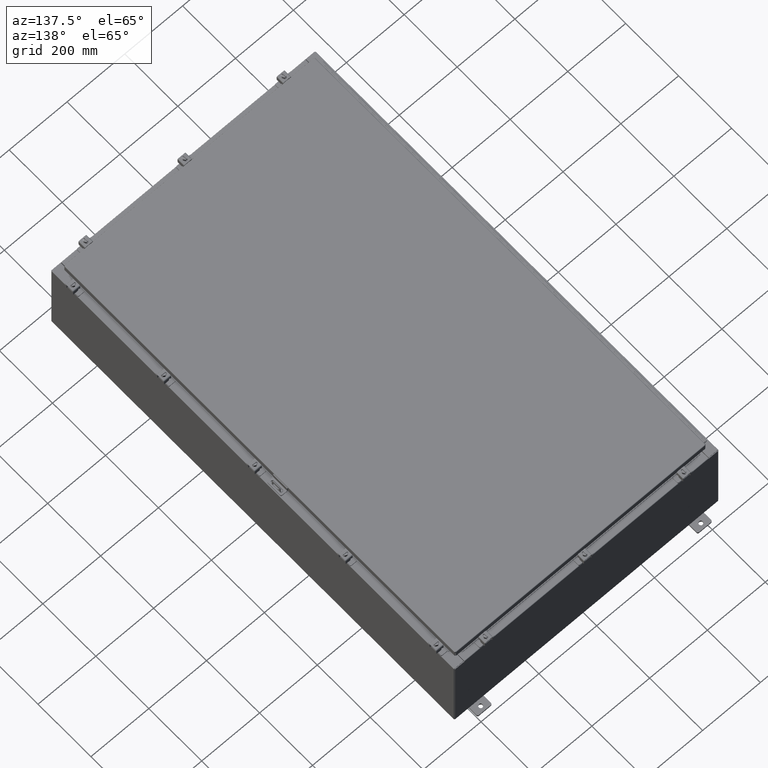
[diagram: clean part render]
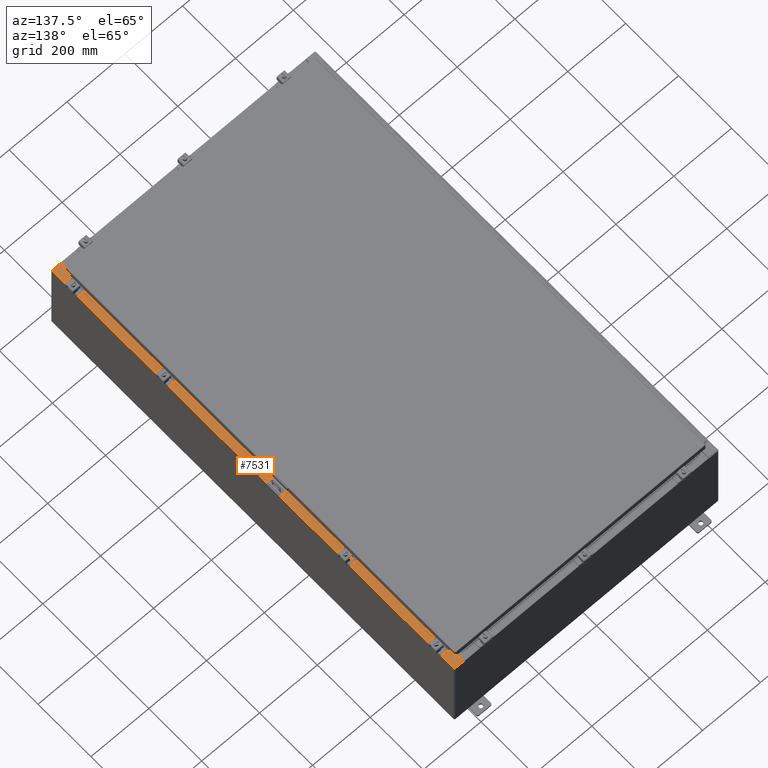
[diagram: same view with one face highlighted and labeled with its STEP entity id]
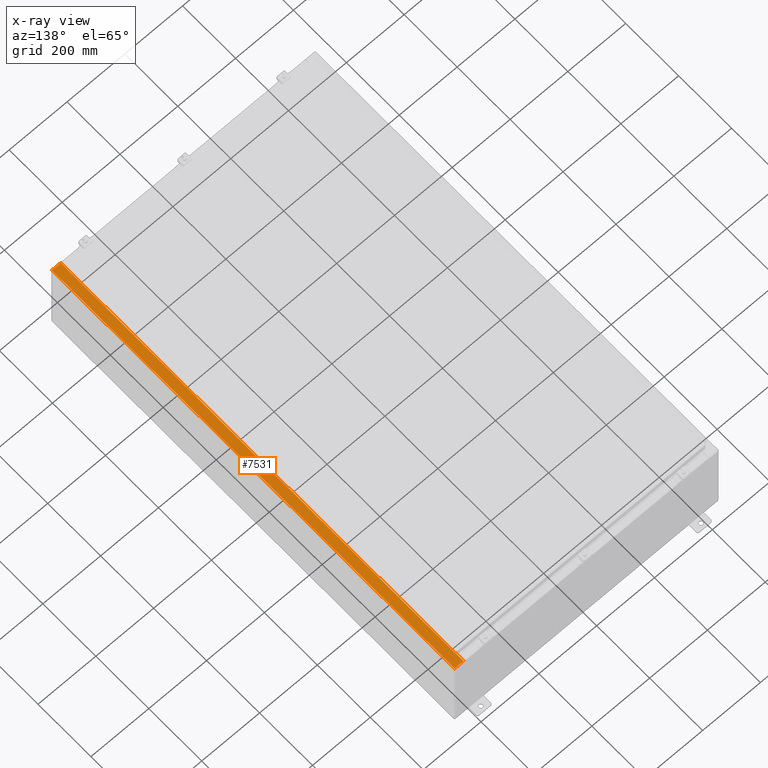
[diagram: x-ray of the same camera — body ghosted, the highlighted face saturated]
A machine part, auxiliary view. The second image highlights one B-rep face of the part: STEP entity #7531.
The next image is the same camera in x-ray: the body ghosted, the highlighted face saturated — about 0% of this face is hidden behind the body in this view.
In plain terms, the highlighted planar face has unit normal (-0, 0, -1).
Its self-contained STEP definition (entity closure, byte-faithful):
#691 = CARTESIAN_POINT ( 'NONE',  ( 16.69970000000003900, 0.0000000000000000000, 11.92530000000000900 ) ) ;
#849 = LINE ( 'NONE', #7342, #38134 ) ;
#1673 = ORIENTED_EDGE ( 'NONE', *, *, #3685, .F. ) ;
#2321 = VECTOR ( 'NONE', #20924, 39.37007874015748100 ) ;
#2642 = VERTEX_POINT ( 'NONE', #23328 ) ;
#3685 = EDGE_CURVE ( 'NONE', #2642, #50782, #41974, .T. ) ;
#4410 = EDGE_CURVE ( 'NONE', #4682, #9952, #27819, .T. ) ;
#4682 = VERTEX_POINT ( 'NONE', #61516 ) ;
#5376 = EDGE_CURVE ( 'NONE', #39434, #16762, #57508, .T. ) ;
#5885 = CARTESIAN_POINT ( 'NONE',  ( 8.532114493236880700E-014, -29.92530000000001100, 11.92530000000013000 ) ) ;
#6881 = ORIENTED_EDGE ( 'NONE', *, *, #5376, .T. ) ;
#7342 = CARTESIAN_POINT ( 'NONE',  ( 16.71270000000004400, -28.59375000000001400, 11.92530000000000900 ) ) ;
#7531 = ADVANCED_FACE ( 'NONE', ( #61802 ), #43849, .F. ) ;
#8200 = VERTEX_POINT ( 'NONE', #55614 ) ;
#8654 = EDGE_CURVE ( 'NONE', #40941, #8200, #28168, .T. ) ;
#9817 = CARTESIAN_POINT ( 'NONE',  ( 17.91230000000004100, 29.92529999999999300, 11.92530000000000400 ) ) ;
#9952 = VERTEX_POINT ( 'NONE', #62956 ) ;
#10316 = EDGE_CURVE ( 'NONE', #36567, #16762, #14272, .T. ) ;
#10706 = ORIENTED_EDGE ( 'NONE', *, *, #8654, .F. ) ;
#12007 = DIRECTION ( 'NONE',  ( 7.132762385546384700E-015, 0.0000000000000000000, 1.000000000000000000 ) ) ;
#12204 = DIRECTION ( 'NONE',  ( -0.0000000000000000000, 1.000000000000000000, -0.0000000000000000000 ) ) ;
#13624 = ORIENTED_EDGE ( 'NONE', *, *, #38845, .F. ) ;
#13774 = CARTESIAN_POINT ( 'NONE',  ( 16.75005000000004100, -28.59375000000001100, 11.92530000000000900 ) ) ;
#14158 = ORIENTED_EDGE ( 'NONE', *, *, #10316, .F. ) ;
#14272 = LINE ( 'NONE', #17366, #25666 ) ;
#14598 = VECTOR ( 'NONE', #49181, 39.37007874015748100 ) ;
#14751 = DIRECTION ( 'NONE',  ( -7.132762385546384700E-015, 0.0000000000000000000, -1.000000000000000000 ) ) ;
#15119 = CARTESIAN_POINT ( 'NONE',  ( 17.91230000000004100, -29.92530000000001100, 11.92530000000000400 ) ) ;
#15150 = DIRECTION ( 'NONE',  ( 0.0000000000000000000, -1.000000000000000000, 0.0000000000000000000 ) ) ;
#16016 = CARTESIAN_POINT ( 'NONE',  ( 16.75005000000004100, -28.59375000000001100, 11.92530000000000900 ) ) ;
#16762 = VERTEX_POINT ( 'NONE', #25248 ) ;
#17366 = CARTESIAN_POINT ( 'NONE',  ( 16.75005000000004100, 28.63109999999999600, 11.92530000000000900 ) ) ;
#17434 = ORIENTED_EDGE ( 'NONE', *, *, #45093, .T. ) ;
#17579 = DIRECTION ( 'NONE',  ( -1.000000000000000000, 8.681145560799821800E-014, 0.0000000000000000000 ) ) ;
#18216 = VERTEX_POINT ( 'NONE', #13774 ) ;
#18588 = EDGE_CURVE ( 'NONE', #8200, #18216, #22464, .T. ) ;
#18804 = VECTOR ( 'NONE', #20902, 39.37007874015748100 ) ;
#19425 = CARTESIAN_POINT ( 'NONE',  ( 8.532114493236880700E-014, 0.0000000000000000000, 11.92530000000013000 ) ) ;
#20109 = CARTESIAN_POINT ( 'NONE',  ( 16.71270000000004400, 28.59374999999999600, 11.92530000000000900 ) ) ;
#20902 = DIRECTION ( 'NONE',  ( -1.000000000000000000, 0.0000000000000000000, 0.0000000000000000000 ) ) ;
#20924 = DIRECTION ( 'NONE',  ( 1.000000000000000000, 0.0000000000000000000, 0.0000000000000000000 ) ) ;
#22464 = CIRCLE ( 'NONE', #53040, 0.01867499999999949400 ) ;
#23328 = CARTESIAN_POINT ( 'NONE',  ( 16.71270000000004400, 28.59374999999999600, 11.92530000000000900 ) ) ;
#24126 = ORIENTED_EDGE ( 'NONE', *, *, #37565, .F. ) ;
#25248 = CARTESIAN_POINT ( 'NONE',  ( 16.69970000000003900, 28.63109999999998900, 11.92530000000000900 ) ) ;
#25666 = VECTOR ( 'NONE', #17579, 39.37007874015748100 ) ;
#25735 = ORIENTED_EDGE ( 'NONE', *, *, #40205, .F. ) ;
#27015 = DIRECTION ( 'NONE',  ( 7.132762385546384700E-015, 0.0000000000000000000, 1.000000000000000000 ) ) ;
#27819 = LINE ( 'NONE', #5885, #39263 ) ;
#27982 = EDGE_LOOP ( 'NONE', ( #10706, #45164, #31981, #24126, #17434, #6881, #14158, #25735, #1673, #34882, #13624, #55627 ) ) ;
#28168 = LINE ( 'NONE', #59856, #2321 ) ;
#30061 = CIRCLE ( 'NONE', #50980, 0.01867499999999949400 ) ;
#31667 = VERTEX_POINT ( 'NONE', #9817 ) ;
#31791 = CARTESIAN_POINT ( 'NONE',  ( 8.532114493236880700E-014, 29.92529999999999300, 11.92530000000013000 ) ) ;
#31981 = ORIENTED_EDGE ( 'NONE', *, *, #4410, .T. ) ;
#33167 = VERTEX_POINT ( 'NONE', #62135 ) ;
#34207 = VECTOR ( 'NONE', #34697, 39.37007874015748100 ) ;
#34427 = VECTOR ( 'NONE', #41568, 39.37007874015748100 ) ;
#34697 = DIRECTION ( 'NONE',  ( -0.0000000000000000000, -1.000000000000000000, -0.0000000000000000000 ) ) ;
#34882 = ORIENTED_EDGE ( 'NONE', *, *, #43328, .F. ) ;
#35622 = CARTESIAN_POINT ( 'NONE',  ( 16.75005000000004100, 28.63109999999999600, 11.92530000000000900 ) ) ;
#36567 = VERTEX_POINT ( 'NONE', #35622 ) ;
#37565 = EDGE_CURVE ( 'NONE', #31667, #9952, #58552, .T. ) ;
#38134 = VECTOR ( 'NONE', #12204, 39.37007874015748100 ) ;
#38567 = DIRECTION ( 'NONE',  ( 0.0000000000000000000, -1.000000000000000000, 0.0000000000000000000 ) ) ;
#38845 = EDGE_CURVE ( 'NONE', #18216, #33167, #59150, .T. ) ;
#39263 = VECTOR ( 'NONE', #59013, 39.37007874015748100 ) ;
#39434 = VERTEX_POINT ( 'NONE', #50050 ) ;
#40009 = VECTOR ( 'NONE', #38567, 39.37007874015748100 ) ;
#40205 = EDGE_CURVE ( 'NONE', #50782, #36567, #30061, .T. ) ;
#40941 = VERTEX_POINT ( 'NONE', #52177 ) ;
#41174 = CARTESIAN_POINT ( 'NONE',  ( 16.75005000000004100, -28.61242500000000900, 11.92530000000000900 ) ) ;
#41568 = DIRECTION ( 'NONE',  ( -1.000000000000000000, 0.0000000000000000000, 7.132762385546384700E-015 ) ) ;
#41974 = LINE ( 'NONE', #20109, #14598 ) ;
#42970 = VECTOR ( 'NONE', #15150, 39.37007874015748100 ) ;
#43328 = EDGE_CURVE ( 'NONE', #33167, #2642, #849, .T. ) ;
#43849 = PLANE ( 'NONE',  #54220 ) ;
#44504 = LINE ( 'NONE', #691, #42970 ) ;
#45093 = EDGE_CURVE ( 'NONE', #31667, #39434, #60299, .T. ) ;
#45164 = ORIENTED_EDGE ( 'NONE', *, *, #49137, .T. ) ;
#46026 = DIRECTION ( 'NONE',  ( 1.000000000000000000, 0.0000000000000000000, 0.0000000000000000000 ) ) ;
#48730 = DIRECTION ( 'NONE',  ( -1.000000000000000000, 0.0000000000000000000, 7.132762385546384700E-015 ) ) ;
#49137 = EDGE_CURVE ( 'NONE', #40941, #4682, #44504, .T. ) ;
#49181 = DIRECTION ( 'NONE',  ( 1.000000000000000000, 0.0000000000000000000, 0.0000000000000000000 ) ) ;
#50050 = CARTESIAN_POINT ( 'NONE',  ( 16.69970000000003900, 29.92529999999999300, 11.92530000000000900 ) ) ;
#50782 = VERTEX_POINT ( 'NONE', #54396 ) ;
#50980 = AXIS2_PLACEMENT_3D ( 'NONE', #56147, #27015, #61082 ) ;
#52177 = CARTESIAN_POINT ( 'NONE',  ( 16.69970000000003900, -28.63110000000000700, 11.92530000000000900 ) ) ;
#53040 = AXIS2_PLACEMENT_3D ( 'NONE', #41174, #12007, #46026 ) ;
#54220 = AXIS2_PLACEMENT_3D ( 'NONE', #19425, #14751, #48730 ) ;
#54396 = CARTESIAN_POINT ( 'NONE',  ( 16.75005000000004100, 28.59374999999999600, 11.92530000000000900 ) ) ;
#55614 = CARTESIAN_POINT ( 'NONE',  ( 16.75005000000004100, -28.63110000000000700, 11.92530000000000900 ) ) ;
#55627 = ORIENTED_EDGE ( 'NONE', *, *, #18588, .F. ) ;
#56147 = CARTESIAN_POINT ( 'NONE',  ( 16.75005000000004100, 28.61242499999999500, 11.92530000000000900 ) ) ;
#57508 = LINE ( 'NONE', #62807, #40009 ) ;
#58552 = LINE ( 'NONE', #15119, #34207 ) ;
#59013 = DIRECTION ( 'NONE',  ( 1.000000000000000000, 0.0000000000000000000, -7.132762385546384700E-015 ) ) ;
#59150 = LINE ( 'NONE', #16016, #18804 ) ;
#59856 = CARTESIAN_POINT ( 'NONE',  ( 16.69970000000003900, -28.63110000000000700, 11.92530000000000900 ) ) ;
#60299 = LINE ( 'NONE', #31791, #34427 ) ;
#61082 = DIRECTION ( 'NONE',  ( 1.000000000000000000, 0.0000000000000000000, 0.0000000000000000000 ) ) ;
#61516 = CARTESIAN_POINT ( 'NONE',  ( 16.69970000000003900, -29.92530000000001100, 11.92530000000000900 ) ) ;
#61802 = FACE_OUTER_BOUND ( 'NONE', #27982, .T. ) ;
#62135 = CARTESIAN_POINT ( 'NONE',  ( 16.71270000000004400, -28.59375000000001100, 11.92530000000000900 ) ) ;
#62807 = CARTESIAN_POINT ( 'NONE',  ( 16.69970000000003900, 0.0000000000000000000, 11.92530000000000900 ) ) ;
#62956 = CARTESIAN_POINT ( 'NONE',  ( 17.91230000000004100, -29.92530000000001100, 11.92530000000000400 ) ) ;